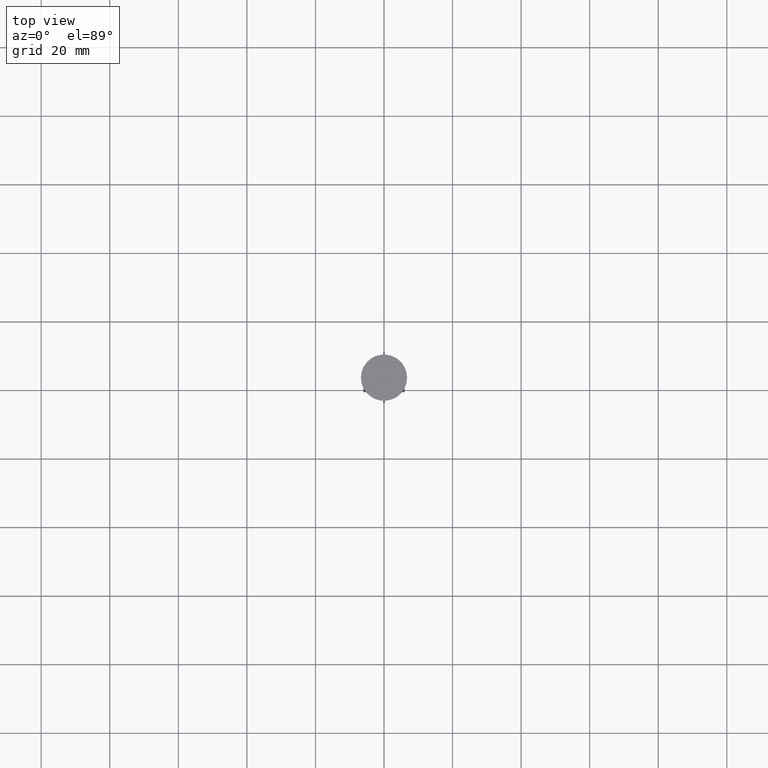
[diagram: clean part render]
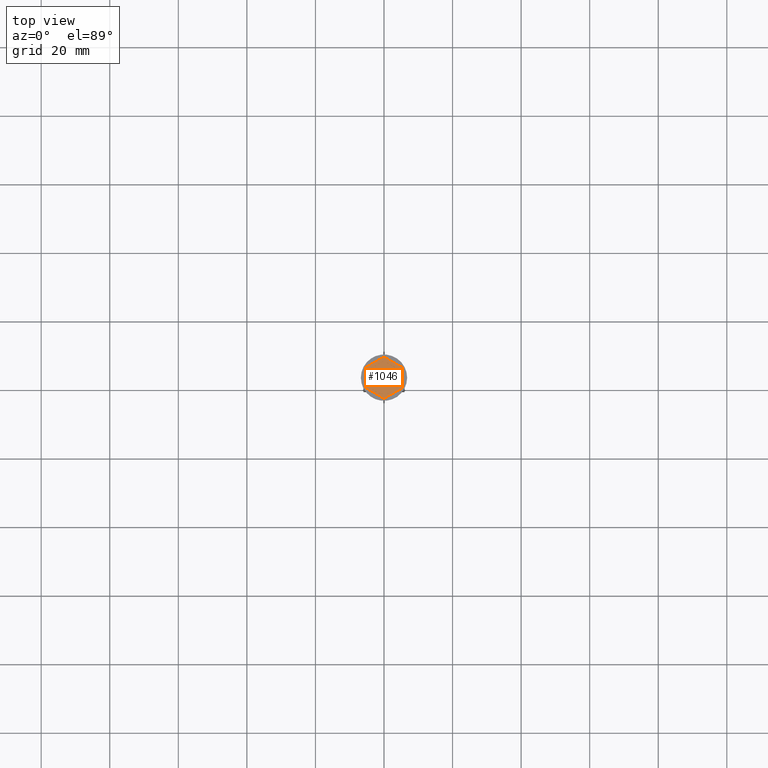
[diagram: same view with one face highlighted and labeled with its STEP entity id]
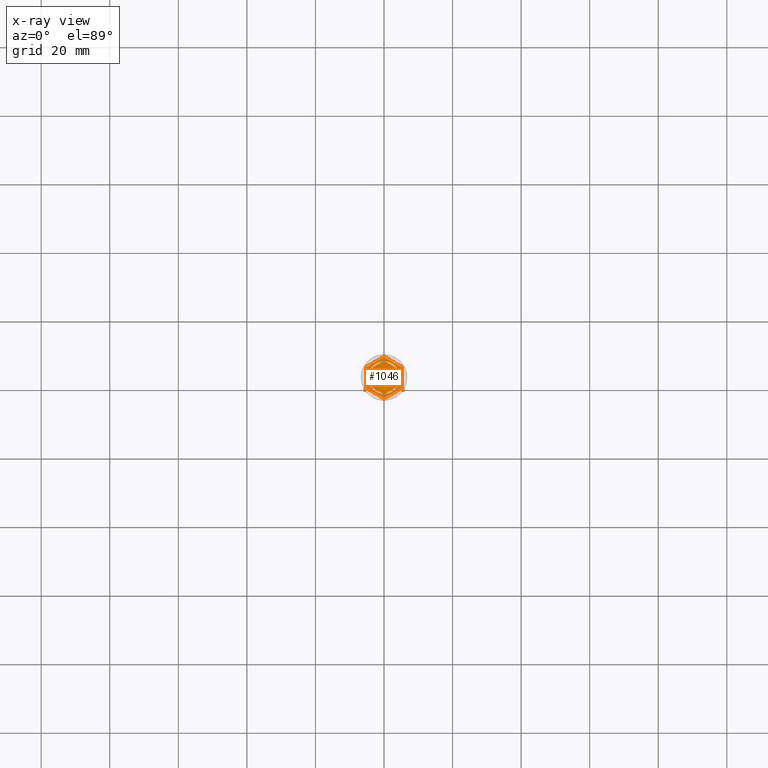
[diagram: x-ray of the same camera — body ghosted, the highlighted face saturated]
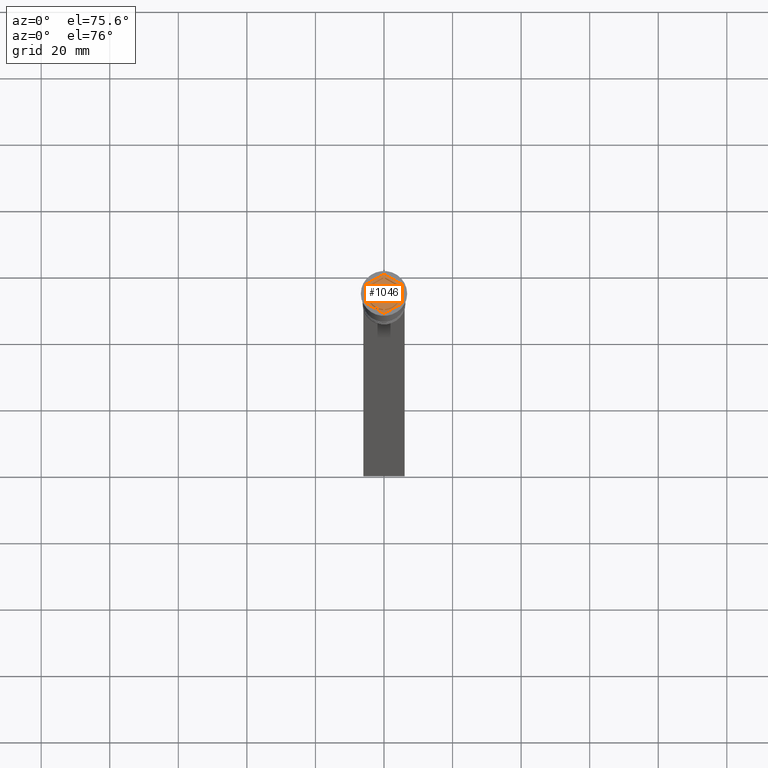
[diagram: same view with one face highlighted and labeled with its STEP entity id]
A machine part, top view. The second image highlights one B-rep face of the part: STEP entity #1046.
The next image is the same camera in x-ray: the body ghosted, the highlighted face saturated — about 0% of this face is hidden behind the body in this view.
A second angle (auxiliary view) of the same face is appended — the face is thin or edge-on in the first view.
In plain terms, the highlighted planar face has unit normal (0, 0, 1).
Its self-contained STEP definition (entity closure, byte-faithful):
#8 = DIRECTION ( 'NONE',  ( 0.000000000000000000, 1.000000000000000000, 0.000000000000000000 ) ) ;
#27 = EDGE_CURVE ( 'NONE', #2089, #1577, #579, .T. ) ;
#50 = DIRECTION ( 'NONE',  ( 0.000000000000000000, 0.000000000000000000, 1.000000000000000000 ) ) ;
#84 = AXIS2_PLACEMENT_3D ( 'NONE', #913, #1648, #2007 ) ;
#104 = EDGE_CURVE ( 'NONE', #886, #1942, #1476, .T. ) ;
#111 = CARTESIAN_POINT ( 'NONE',  ( 4.249999999999999112, -2.121320343559645938, -1.000000000000000888 ) ) ;
#118 = DIRECTION ( 'NONE',  ( 1.000000000000000000, 0.000000000000000000, 0.000000000000000000 ) ) ;
#128 = DIRECTION ( 'NONE',  ( -0.8660254037844385966, -0.5000000000000000000, 0.000000000000000000 ) ) ;
#136 = FACE_BOUND ( 'NONE', #1848, .T. ) ;
#146 = DIRECTION ( 'NONE',  ( 0.000000000000000000, 0.000000000000000000, 1.000000000000000000 ) ) ;
#154 = VERTEX_POINT ( 'NONE', #1225 ) ;
#164 = VECTOR ( 'NONE', #528, 1000.000000000000000 ) ;
#169 = DIRECTION ( 'NONE',  ( -0.8660254037844385966, 0.5000000000000001110, 0.000000000000000000 ) ) ;
#186 = VECTOR ( 'NONE', #8, 1000.000000000000000 ) ;
#197 = CIRCLE ( 'NONE', #1975, 4.750000000000000888 ) ;
#215 = CARTESIAN_POINT ( 'NONE',  ( 0.2878826929126150347, -4.741268137863686505, -1.000000000000000888 ) ) ;
#222 = CARTESIAN_POINT ( 'NONE',  ( 0.000000000000000000, 0.000000000000000000, -1.000000000000000000 ) ) ;
#224 = AXIS2_PLACEMENT_3D ( 'NONE', #906, #50, #1861 ) ;
#235 = CIRCLE ( 'NONE', #1569, 4.750000000000000888 ) ;
#242 = AXIS2_PLACEMENT_3D ( 'NONE', #222, #1696, #1663 ) ;
#252 = VERTEX_POINT ( 'NONE', #1104 ) ;
#253 = LINE ( 'NONE', #1521, #1197 ) ;
#264 = AXIS2_PLACEMENT_3D ( 'NONE', #1857, #397, #588 ) ;
#274 = VECTOR ( 'NONE', #1181, 1000.000000000000114 ) ;
#294 = VERTEX_POINT ( 'NONE', #384 ) ;
#367 = DIRECTION ( 'NONE',  ( 0.000000000000000000, -1.000000000000000000, 0.000000000000000000 ) ) ;
#377 = ORIENTED_EDGE ( 'NONE', *, *, #2102, .F. ) ;
#384 = CARTESIAN_POINT ( 'NONE',  ( -3.962117307087385409, 2.619947794304041899, -1.000000000000000888 ) ) ;
#397 = DIRECTION ( 'NONE',  ( 0.000000000000000000, 0.000000000000000000, 1.000000000000000000 ) ) ;
#400 = CARTESIAN_POINT ( 'NONE',  ( -8.673617379884035472E-16, -4.907477288111819824, -1.000000000000000888 ) ) ;
#405 = CARTESIAN_POINT ( 'NONE',  ( 0.2878826929126145906, 4.741268137863685617, -1.000000000000000888 ) ) ;
#413 = CARTESIAN_POINT ( 'NONE',  ( -0.2878826929126160894, 4.741268137863686505, -1.000000000000000888 ) ) ;
#424 = VECTOR ( 'NONE', #635, 1000.000000000000000 ) ;
#435 = CARTESIAN_POINT ( 'NONE',  ( 4.249999999999999112, 2.121320343559644162, -1.000000000000000888 ) ) ;
#442 = CARTESIAN_POINT ( 'NONE',  ( 5.250000000000000888, 3.031088913245536087, -1.000000000000000000 ) ) ;
#444 = CARTESIAN_POINT ( 'NONE',  ( 8.729740977282959667E-16, -6.062177826491071286, -1.000000000000000000 ) ) ;
#479 = CARTESIAN_POINT ( 'NONE',  ( 0.000000000000000000, 0.000000000000000000, -1.000000000000000000 ) ) ;
#488 = DIRECTION ( 'NONE',  ( 1.000000000000000000, 0.000000000000000000, 0.000000000000000000 ) ) ;
#509 = LINE ( 'NONE', #1934, #2252 ) ;
#516 = EDGE_CURVE ( 'NONE', #1583, #2002, #1550, .T. ) ;
#524 = EDGE_CURVE ( 'NONE', #2002, #2089, #2270, .T. ) ;
#528 = DIRECTION ( 'NONE',  ( -1.767428939690775055E-16, -1.000000000000000000, 0.000000000000000000 ) ) ;
#579 = LINE ( 'NONE', #934, #2178 ) ;
#588 = DIRECTION ( 'NONE',  ( 1.000000000000000000, 0.000000000000000000, 0.000000000000000000 ) ) ;
#615 = EDGE_CURVE ( 'NONE', #1577, #2110, #509, .T. ) ;
#618 = EDGE_CURVE ( 'NONE', #783, #661, #197, .T. ) ;
#634 = CARTESIAN_POINT ( 'NONE',  ( -5.250000000000000888, 3.031088913245535643, -1.000000000000000000 ) ) ;
#635 = DIRECTION ( 'NONE',  ( 0.000000000000000000, 1.000000000000000000, 0.000000000000000000 ) ) ;
#639 = CARTESIAN_POINT ( 'NONE',  ( 0.000000000000000000, 0.000000000000000000, -1.000000000000000000 ) ) ;
#658 = EDGE_CURVE ( 'NONE', #1942, #886, #1726, .T. ) ;
#661 = VERTEX_POINT ( 'NONE', #1948 ) ;
#672 = DIRECTION ( 'NONE',  ( 0.000000000000000000, 0.000000000000000000, 1.000000000000000000 ) ) ;
#690 = VECTOR ( 'NONE', #2170, 1000.000000000000000 ) ;
#731 = LINE ( 'NONE', #872, #1871 ) ;
#767 = ORIENTED_EDGE ( 'NONE', *, *, #27, .T. ) ;
#783 = VERTEX_POINT ( 'NONE', #215 ) ;
#785 = CARTESIAN_POINT ( 'NONE',  ( -0.2878826929126160894, -4.741268137863686505, -1.000000000000000888 ) ) ;
#816 = LINE ( 'NONE', #2306, #1033 ) ;
#819 = CARTESIAN_POINT ( 'NONE',  ( -4.750000000000000888, 0.000000000000000000, -1.000000000000000000 ) ) ;
#821 = ORIENTED_EDGE ( 'NONE', *, *, #1589, .F. ) ;
#850 = CARTESIAN_POINT ( 'NONE',  ( 4.250000000000000000, 2.453738644055910800, -1.000000000000000888 ) ) ;
#853 = FACE_OUTER_BOUND ( 'NONE', #1263, .T. ) ;
#859 = EDGE_CURVE ( 'NONE', #294, #1249, #253, .T. ) ;
#862 = FACE_BOUND ( 'NONE', #1363, .T. ) ;
#864 = ORIENTED_EDGE ( 'NONE', *, *, #2340, .T. ) ;
#867 = CIRCLE ( 'NONE', #224, 4.750000000000000888 ) ;
#872 = CARTESIAN_POINT ( 'NONE',  ( -4.250000000000000000, -2.453738644055909912, -1.000000000000000888 ) ) ;
#879 = LINE ( 'NONE', #2332, #186 ) ;
#886 = VERTEX_POINT ( 'NONE', #405 ) ;
#889 = CARTESIAN_POINT ( 'NONE',  ( -3.962117307087385409, -2.619947794304041899, -1.000000000000000888 ) ) ;
#904 = CIRCLE ( 'NONE', #84, 4.750000000000000888 ) ;
#906 = CARTESIAN_POINT ( 'NONE',  ( 0.000000000000000000, 0.000000000000000000, -1.000000000000000000 ) ) ;
#913 = CARTESIAN_POINT ( 'NONE',  ( 0.000000000000000000, 0.000000000000000000, -1.000000000000000000 ) ) ;
#934 = CARTESIAN_POINT ( 'NONE',  ( 5.250000000000000888, 3.031088913245536087, -1.000000000000000000 ) ) ;
#946 = ORIENTED_EDGE ( 'NONE', *, *, #1920, .F. ) ;
#948 = ORIENTED_EDGE ( 'NONE', *, *, #1947, .F. ) ;
#955 = DIRECTION ( 'NONE',  ( 0.8660254037844385966, 0.5000000000000001110, -0.000000000000000000 ) ) ;
#965 = VECTOR ( 'NONE', #2299, 1000.000000000000000 ) ;
#1007 = FACE_BOUND ( 'NONE', #1505, .T. ) ;
#1010 = CARTESIAN_POINT ( 'NONE',  ( 5.250000000000000888, -3.031088913245536087, -1.000000000000000000 ) ) ;
#1033 = VECTOR ( 'NONE', #1578, 1000.000000000000000 ) ;
#1046 = ADVANCED_FACE ( 'NONE', ( #862, #1402, #2273, #2116, #1007, #136, #853 ), #1734, .T. ) ;
#1047 = EDGE_LOOP ( 'NONE', ( #1510, #821 ) ) ;
#1067 = ORIENTED_EDGE ( 'NONE', *, *, #658, .F. ) ;
#1094 = CARTESIAN_POINT ( 'NONE',  ( 8.729740977282959667E-16, -6.062177826491071286, -1.000000000000000000 ) ) ;
#1098 = LINE ( 'NONE', #1769, #1198 ) ;
#1104 = CARTESIAN_POINT ( 'NONE',  ( -4.250000000000000000, -2.121320343559643717, -1.000000000000000888 ) ) ;
#1106 = CARTESIAN_POINT ( 'NONE',  ( 0.000000000000000000, 6.062177826491072175, -1.000000000000000000 ) ) ;
#1121 = EDGE_CURVE ( 'NONE', #1241, #2301, #731, .T. ) ;
#1122 = LINE ( 'NONE', #400, #690 ) ;
#1151 = EDGE_CURVE ( 'NONE', #1768, #2160, #2161, .T. ) ;
#1181 = DIRECTION ( 'NONE',  ( 0.8660254037844385966, 0.4999999999999999445, 0.000000000000000000 ) ) ;
#1197 = VECTOR ( 'NONE', #955, 1000.000000000000000 ) ;
#1198 = VECTOR ( 'NONE', #367, 1000.000000000000000 ) ;
#1206 = CARTESIAN_POINT ( 'NONE',  ( 0.000000000000000000, 0.000000000000000000, -1.000000000000000000 ) ) ;
#1225 = CARTESIAN_POINT ( 'NONE',  ( -4.250000000000000000, 2.121320343559643717, -1.000000000000000888 ) ) ;
#1233 = CARTESIAN_POINT ( 'NONE',  ( -5.250000000000000888, -3.031088913245536087, -1.000000000000000000 ) ) ;
#1241 = VERTEX_POINT ( 'NONE', #785 ) ;
#1245 = CARTESIAN_POINT ( 'NONE',  ( 0.000000000000000000, 0.000000000000000000, -1.000000000000000000 ) ) ;
#1249 = VERTEX_POINT ( 'NONE', #413 ) ;
#1259 = EDGE_CURVE ( 'NONE', #2301, #1241, #1272, .T. ) ;
#1263 = EDGE_LOOP ( 'NONE', ( #767, #1916, #864, #2149, #2128, #2272 ) ) ;
#1272 = CIRCLE ( 'NONE', #242, 4.750000000000000888 ) ;
#1315 = DIRECTION ( 'NONE',  ( -0.8660254037844385966, 0.4999999999999998890, 0.000000000000000000 ) ) ;
#1320 = ORIENTED_EDGE ( 'NONE', *, *, #2009, .F. ) ;
#1363 = EDGE_LOOP ( 'NONE', ( #1067, #1945 ) ) ;
#1402 = FACE_BOUND ( 'NONE', #1842, .T. ) ;
#1408 = CIRCLE ( 'NONE', #264, 4.750000000000000888 ) ;
#1421 = ORIENTED_EDGE ( 'NONE', *, *, #1151, .F. ) ;
#1458 = AXIS2_PLACEMENT_3D ( 'NONE', #639, #1584, #1740 ) ;
#1476 = LINE ( 'NONE', #850, #965 ) ;
#1505 = EDGE_LOOP ( 'NONE', ( #1320, #946, #377 ) ) ;
#1510 = ORIENTED_EDGE ( 'NONE', *, *, #618, .F. ) ;
#1521 = CARTESIAN_POINT ( 'NONE',  ( 4.336808689942017736E-16, 4.907477288111819824, -1.000000000000000888 ) ) ;
#1550 = LINE ( 'NONE', #444, #274 ) ;
#1569 = AXIS2_PLACEMENT_3D ( 'NONE', #1206, #672, #1904 ) ;
#1577 = VERTEX_POINT ( 'NONE', #1106 ) ;
#1578 = DIRECTION ( 'NONE',  ( 0.8660254037844387076, -0.4999999999999998335, 0.000000000000000000 ) ) ;
#1583 = VERTEX_POINT ( 'NONE', #1094 ) ;
#1584 = DIRECTION ( 'NONE',  ( 0.000000000000000000, 0.000000000000000000, 1.000000000000000000 ) ) ;
#1589 = EDGE_CURVE ( 'NONE', #661, #783, #1122, .T. ) ;
#1625 = EDGE_CURVE ( 'NONE', #2160, #1768, #867, .T. ) ;
#1648 = DIRECTION ( 'NONE',  ( 0.000000000000000000, 0.000000000000000000, 1.000000000000000000 ) ) ;
#1656 = CARTESIAN_POINT ( 'NONE',  ( 4.249999999999999112, -2.453738644055910356, -1.000000000000000888 ) ) ;
#1663 = DIRECTION ( 'NONE',  ( 1.000000000000000000, 0.000000000000000000, 0.000000000000000000 ) ) ;
#1685 = CARTESIAN_POINT ( 'NONE',  ( 5.250000000000000888, -3.031088913245536087, -1.000000000000000000 ) ) ;
#1696 = DIRECTION ( 'NONE',  ( 0.000000000000000000, 0.000000000000000000, 1.000000000000000000 ) ) ;
#1726 = CIRCLE ( 'NONE', #1869, 4.750000000000000888 ) ;
#1734 = PLANE ( 'NONE',  #1458 ) ;
#1740 = DIRECTION ( 'NONE',  ( 1.000000000000000000, 0.000000000000000000, -0.000000000000000000 ) ) ;
#1746 = EDGE_LOOP ( 'NONE', ( #2105, #1758 ) ) ;
#1758 = ORIENTED_EDGE ( 'NONE', *, *, #1121, .F. ) ;
#1768 = VERTEX_POINT ( 'NONE', #435 ) ;
#1769 = CARTESIAN_POINT ( 'NONE',  ( -5.250000000000000888, 3.031088913245535643, -1.000000000000000000 ) ) ;
#1789 = VERTEX_POINT ( 'NONE', #819 ) ;
#1842 = EDGE_LOOP ( 'NONE', ( #2174, #1421 ) ) ;
#1848 = EDGE_LOOP ( 'NONE', ( #948, #2195 ) ) ;
#1857 = CARTESIAN_POINT ( 'NONE',  ( 0.000000000000000000, 0.000000000000000000, -1.000000000000000000 ) ) ;
#1861 = DIRECTION ( 'NONE',  ( 1.000000000000000000, 0.000000000000000000, 0.000000000000000000 ) ) ;
#1869 = AXIS2_PLACEMENT_3D ( 'NONE', #1245, #146, #118 ) ;
#1871 = VECTOR ( 'NONE', #169, 1000.000000000000000 ) ;
#1904 = DIRECTION ( 'NONE',  ( 1.000000000000000000, 0.000000000000000000, 0.000000000000000000 ) ) ;
#1916 = ORIENTED_EDGE ( 'NONE', *, *, #615, .T. ) ;
#1920 = EDGE_CURVE ( 'NONE', #252, #154, #879, .T. ) ;
#1934 = CARTESIAN_POINT ( 'NONE',  ( 0.000000000000000000, 6.062177826491072175, -1.000000000000000000 ) ) ;
#1942 = VERTEX_POINT ( 'NONE', #2183 ) ;
#1945 = ORIENTED_EDGE ( 'NONE', *, *, #104, .F. ) ;
#1947 = EDGE_CURVE ( 'NONE', #1249, #294, #904, .T. ) ;
#1948 = CARTESIAN_POINT ( 'NONE',  ( 3.962117307087384521, -2.619947794304042787, -1.000000000000000888 ) ) ;
#1975 = AXIS2_PLACEMENT_3D ( 'NONE', #479, #2120, #488 ) ;
#2002 = VERTEX_POINT ( 'NONE', #1685 ) ;
#2007 = DIRECTION ( 'NONE',  ( 1.000000000000000000, 0.000000000000000000, 0.000000000000000000 ) ) ;
#2009 = EDGE_CURVE ( 'NONE', #154, #1789, #1408, .T. ) ;
#2089 = VERTEX_POINT ( 'NONE', #442 ) ;
#2102 = EDGE_CURVE ( 'NONE', #1789, #252, #235, .T. ) ;
#2105 = ORIENTED_EDGE ( 'NONE', *, *, #1259, .F. ) ;
#2110 = VERTEX_POINT ( 'NONE', #634 ) ;
#2116 = FACE_BOUND ( 'NONE', #1746, .T. ) ;
#2120 = DIRECTION ( 'NONE',  ( 0.000000000000000000, 0.000000000000000000, 1.000000000000000000 ) ) ;
#2123 = EDGE_CURVE ( 'NONE', #2333, #1583, #816, .T. ) ;
#2128 = ORIENTED_EDGE ( 'NONE', *, *, #516, .T. ) ;
#2149 = ORIENTED_EDGE ( 'NONE', *, *, #2123, .T. ) ;
#2160 = VERTEX_POINT ( 'NONE', #111 ) ;
#2161 = LINE ( 'NONE', #1656, #164 ) ;
#2170 = DIRECTION ( 'NONE',  ( -0.8660254037844387076, -0.4999999999999999445, 0.000000000000000000 ) ) ;
#2174 = ORIENTED_EDGE ( 'NONE', *, *, #1625, .F. ) ;
#2178 = VECTOR ( 'NONE', #1315, 1000.000000000000227 ) ;
#2183 = CARTESIAN_POINT ( 'NONE',  ( 3.962117307087384521, 2.619947794304043232, -1.000000000000000888 ) ) ;
#2195 = ORIENTED_EDGE ( 'NONE', *, *, #859, .F. ) ;
#2252 = VECTOR ( 'NONE', #128, 1000.000000000000227 ) ;
#2270 = LINE ( 'NONE', #1010, #424 ) ;
#2272 = ORIENTED_EDGE ( 'NONE', *, *, #524, .T. ) ;
#2273 = FACE_BOUND ( 'NONE', #1047, .T. ) ;
#2299 = DIRECTION ( 'NONE',  ( 0.8660254037844387076, -0.4999999999999998335, 0.000000000000000000 ) ) ;
#2301 = VERTEX_POINT ( 'NONE', #889 ) ;
#2306 = CARTESIAN_POINT ( 'NONE',  ( -5.250000000000000888, -3.031088913245536087, -1.000000000000000000 ) ) ;
#2332 = CARTESIAN_POINT ( 'NONE',  ( -4.250000000000000000, 2.453738644055909468, -1.000000000000000888 ) ) ;
#2333 = VERTEX_POINT ( 'NONE', #1233 ) ;
#2340 = EDGE_CURVE ( 'NONE', #2110, #2333, #1098, .T. ) ;